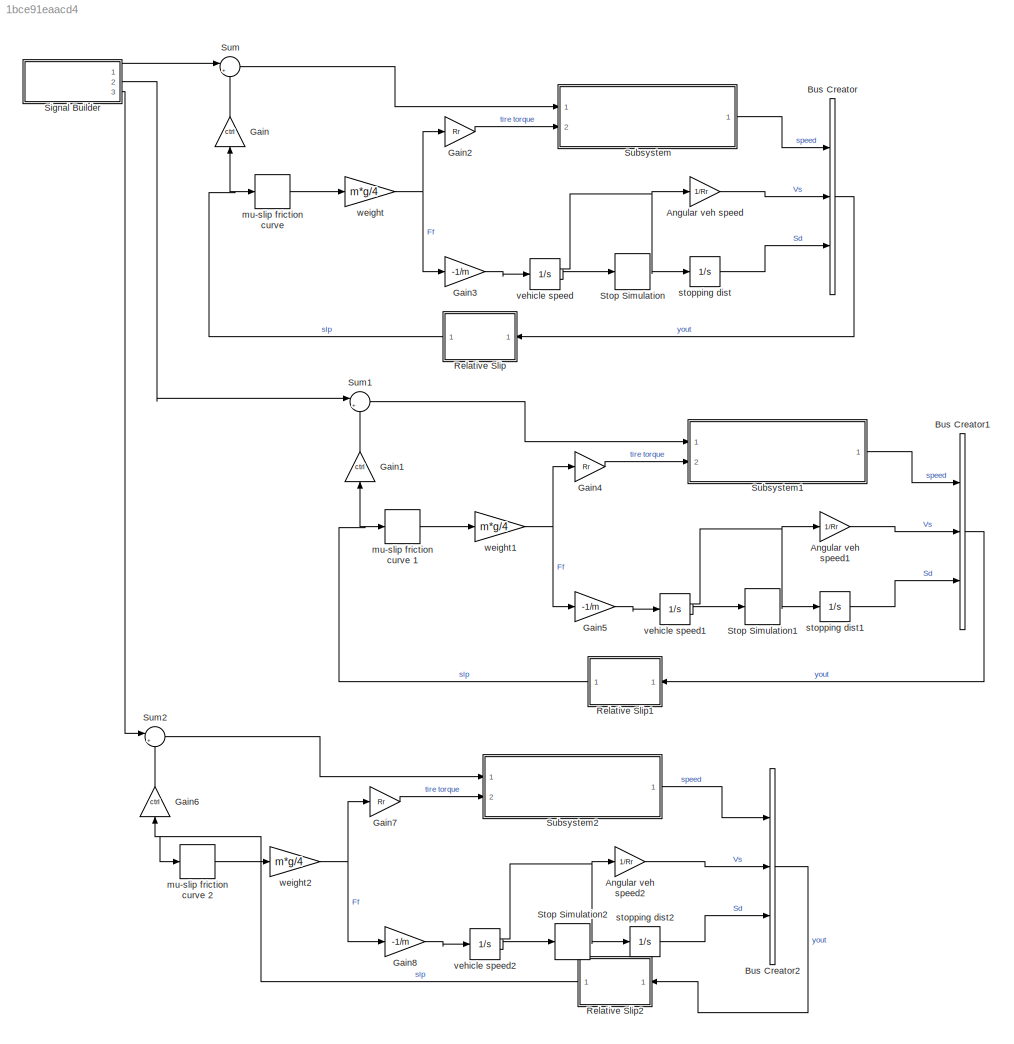
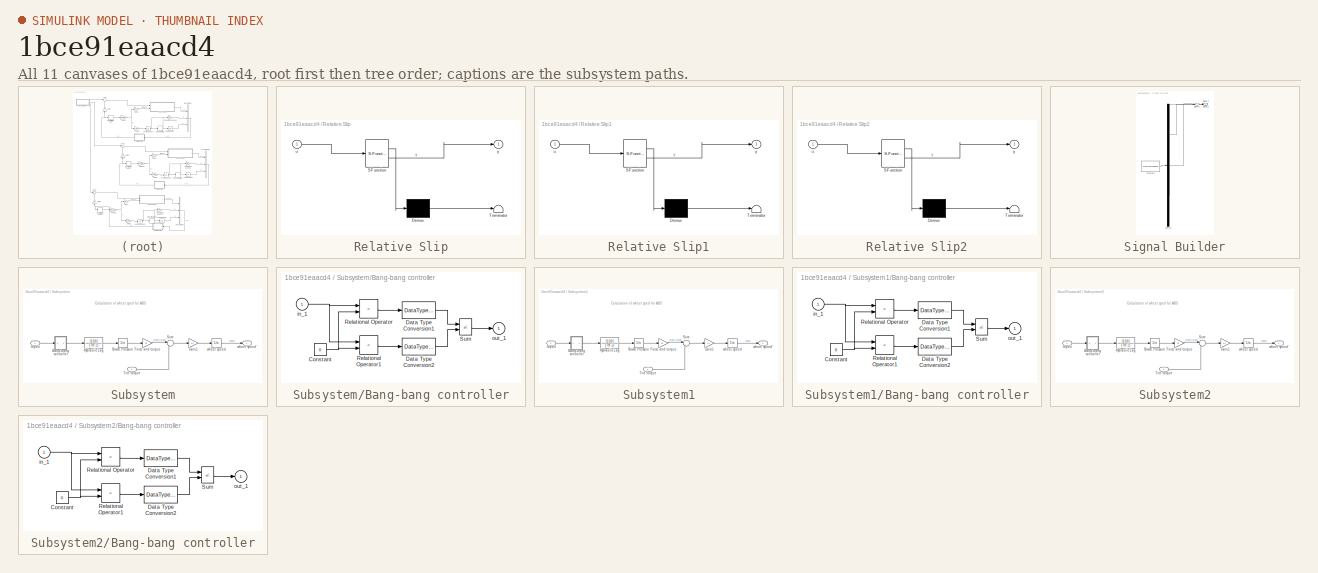
[diagram: thumbnail index - all 11 canvases of the model, root first then tree order]
MODEL slx_1bce91eaacd4
KIND model
CONFIG AbsTol = auto
CONFIG EnableMultiTasking = off
CONFIG FixedStep = auto
CONFIG MaxStep = auto
CONFIG MinStep = auto
CONFIG RelTol = 1e-3
CONFIG SampleTimeConstraint = Unconstrained
CONFIG SolverName = VariableStepAuto
CONFIG StartTime = 0.0
CONFIG StopTime = 10.0
BLOCK [Gain] Angular veh speed
  Gain = 1/Rr
BLOCK [Gain] Angular veh speed1
  Gain = 1/Rr
BLOCK [Gain] Angular veh speed2
  Gain = 1/Rr
BLOCK [BusCreator] Bus Creator
  DisplayOption = bar
  InheritFromInputs = on
  Inputs = 3
  Ports = [3, 1]
BLOCK [BusCreator] Bus Creator1
  DisplayOption = bar
  InheritFromInputs = on
  Inputs = 3
  Ports = [3, 1]
BLOCK [BusCreator] Bus Creator2
  DisplayOption = bar
  InheritFromInputs = on
  Inputs = 3
  Ports = [3, 1]
BLOCK [Gain] Gain
  Gain = ctrl
  NameLocation = left
BLOCK [Gain] Gain1
  Gain = ctrl
  NameLocation = left
BLOCK [Gain] Gain2
  Gain = Rr
BLOCK [Gain] Gain3
  Gain = -1/m
BLOCK [Gain] Gain4
  Gain = Rr
BLOCK [Gain] Gain5
  Gain = -1/m
BLOCK [Gain] Gain6
  Gain = ctrl
  NameLocation = left
BLOCK [Gain] Gain7
  Gain = Rr
BLOCK [Gain] Gain8
  Gain = -1/m
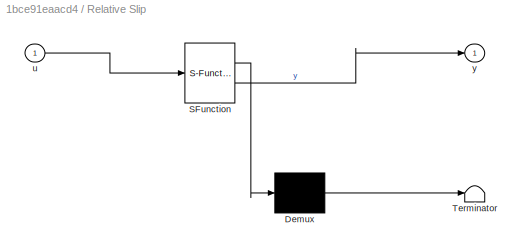
BLOCK [SubSystem] Relative Slip
  ErrorFcn = Stateflow.Translate.translate
  PermitHierarchicalResolution = ExplicitOnly
  Ports = [1, 1]
  RequestExecContextInheritance = off
  SFBlockType = MATLAB Function
  TreatAsAtomicUnit = on
BLOCK [Demux] Relative Slip/ Demux 
  Outputs = 1
  Ports = [1, 1]
BLOCK [S-Function] Relative Slip/ SFunction 
  EnableBusSupport = on
  FunctionName = sf_sfun
  PortCounts = [1 2]
  Ports = [1, 2]
  SFcnIsStateOwnerBlock = off
  SFunctionDeploymentMode = off
  Tag = Stateflow S-Function 2
BLOCK [Terminator] Relative Slip/ Terminator 
BLOCK [Inport] Relative Slip/u
BLOCK [Outport] Relative Slip/y
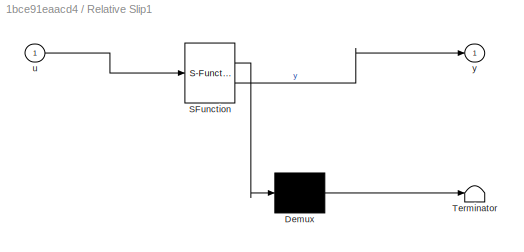
BLOCK [SubSystem] Relative Slip1
  ErrorFcn = Stateflow.Translate.translate
  PermitHierarchicalResolution = ExplicitOnly
  Ports = [1, 1]
  RequestExecContextInheritance = off
  SFBlockType = MATLAB Function
  TreatAsAtomicUnit = on
BLOCK [Demux] Relative Slip1/ Demux 
  Outputs = 1
  Ports = [1, 1]
BLOCK [S-Function] Relative Slip1/ SFunction 
  EnableBusSupport = on
  FunctionName = sf_sfun
  PortCounts = [1 2]
  Ports = [1, 2]
  SFcnIsStateOwnerBlock = off
  SFunctionDeploymentMode = off
  Tag = Stateflow S-Function 1
BLOCK [Terminator] Relative Slip1/ Terminator 
BLOCK [Inport] Relative Slip1/u
BLOCK [Outport] Relative Slip1/y
BLOCK [SubSystem] Relative Slip2
  ErrorFcn = Stateflow.Translate.translate
  PermitHierarchicalResolution = ExplicitOnly
  Ports = [1, 1]
  RequestExecContextInheritance = off
  SFBlockType = MATLAB Function
  TreatAsAtomicUnit = on
BLOCK [Demux] Relative Slip2/ Demux 
  Outputs = 1
  Ports = [1, 1]
BLOCK [S-Function] Relative Slip2/ SFunction 
  EnableBusSupport = on
  FunctionName = sf_sfun
  PortCounts = [1 2]
  Ports = [1, 2]
  SFcnIsStateOwnerBlock = off
  SFunctionDeploymentMode = off
  Tag = Stateflow S-Function 3
BLOCK [Terminator] Relative Slip2/ Terminator 
BLOCK [Inport] Relative Slip2/u
BLOCK [Outport] Relative Slip2/y
BLOCK [SubSystem] Signal Builder
  ClipboardFcn = sigbuilder_block('clipboard');
  CloseFcn = sigbuilder_block('close');
  ContinueFcn = sigbuilder_block('continue');
  CopyFcn = sigbuilder_block('copy');
  DeleteFcn = sigbuilder_block('delete');
  LoadFcn = sigbuilder_block('load');
  MaskHideContents = on
  ModelCloseFcn = sigbuilder_block('modelClose');
  NameChangeFcn = sigbuilder_block('namechange');
  OpenFcn = sigbuilder_block('open',[437.6 153 550.4 359.25 ]);
  PauseFcn = sigbuilder_block('pause');
  Ports = [0, 3]
  PreSaveFcn = sigbuilder_block('preSave');
  RequestExecContextInheritance = off
  StartFcn = sigbuilder_block('start');
  StopFcn = sigbuilder_block('stop');
  Tag = STV Subsys
BLOCK [Demux] Signal Builder/Demux
  DisplayOption = none
  Outputs = 3
  Ports = [1, 3]
  Tag = STV Demux
BLOCK [FromWorkspace] Signal Builder/FromWs
  Tag = STV FromWs
  VariableName = tuvar
BLOCK [Outport] Signal Builder/Signal 1
  Tag = STV Outport
BLOCK [Outport] Signal Builder/Signal 2
  Port = 2
  Tag = STV Outport
BLOCK [Outport] Signal Builder/Signal 3
  Port = 3
  Tag = STV Outport
BLOCK [Stop] Stop Simulation
BLOCK [Stop] Stop Simulation1
BLOCK [Stop] Stop Simulation2
BLOCK [SubSystem] Subsystem
  Ports = [2, 1]
  RequestExecContextInheritance = off
BLOCK [SubSystem] Subsystem/Bang-bang controller
  Ports = [1, 1]
  RequestExecContextInheritance = off
  ShowPortLabels = none
BLOCK [Constant] Subsystem/Bang-bang controller/Constant
  Value = 0
BLOCK [DataTypeConversion] Subsystem/Bang-bang controller/Data Type Conversion1
  OutDataTypeStr = double
BLOCK [DataTypeConversion] Subsystem/Bang-bang controller/Data Type Conversion2
  OutDataTypeStr = double
BLOCK [RelationalOperator] Subsystem/Bang-bang controller/Relational Operator
  Operator = >
  OutDataTypeStr = boolean
  Ports = [2, 1]
BLOCK [RelationalOperator] Subsystem/Bang-bang controller/Relational Operator1
  Operator = <
  OutDataTypeStr = boolean
  Ports = [2, 1]
BLOCK [Sum] Subsystem/Bang-bang controller/Sum
  IconShape = rectangular
  InputSameDT = on
  Inputs = +-
  OutDataTypeStr = Inherit: Same as first input
  Ports = [2, 1]
  SaturateOnIntegerOverflow = on
BLOCK [Inport] Subsystem/Bang-bang controller/in_1
BLOCK [Outport] Subsystem/Bang-bang controller/out_1
  InitialOutput = 0
  VectorParamsAs1DForOutWhenUnconnected = off
BLOCK [Integrator] Subsystem/Brake Pressure
  LimitOutput = on
  LowerSaturationLimit = 0
  Ports = [1, 1]
  UpperSaturationLimit = PBmax
BLOCK [Gain] Subsystem/Force and torque
  Gain = Kf
BLOCK [Gain] Subsystem/Gain1
  Gain = 1/I
BLOCK [TransferFcn] Subsystem/Hydraulic Lag
  Denominator = [TB 1]
  Numerator = [100]
BLOCK [Inport] Subsystem/Inport
BLOCK [Sum] Subsystem/Sum
  Inputs = |-+
  Ports = [2, 1]
BLOCK [Inport] Subsystem/Tire torque
  Port = 2
BLOCK [Integrator] Subsystem/wheel speed
  InitialCondition = v0/Rr
  LimitOutput = on
  LowerSaturationLimit = 0
  Ports = [1, 1]
  UpperSaturationLimit = 1000
BLOCK [Outport] Subsystem/wheel speed'
BLOCK [SubSystem] Subsystem1
  Ports = [2, 1]
  RequestExecContextInheritance = off
BLOCK [SubSystem] Subsystem1/Bang-bang controller
  Ports = [1, 1]
  RequestExecContextInheritance = off
  ShowPortLabels = none
BLOCK [Constant] Subsystem1/Bang-bang controller/Constant
  Value = 0
BLOCK [DataTypeConversion] Subsystem1/Bang-bang controller/Data Type Conversion1
  OutDataTypeStr = double
BLOCK [DataTypeConversion] Subsystem1/Bang-bang controller/Data Type Conversion2
  OutDataTypeStr = double
BLOCK [RelationalOperator] Subsystem1/Bang-bang controller/Relational Operator
  Operator = >
  OutDataTypeStr = boolean
  Ports = [2, 1]
BLOCK [RelationalOperator] Subsystem1/Bang-bang controller/Relational Operator1
  Operator = <
  OutDataTypeStr = boolean
  Ports = [2, 1]
BLOCK [Sum] Subsystem1/Bang-bang controller/Sum
  IconShape = rectangular
  InputSameDT = on
  Inputs = +-
  OutDataTypeStr = Inherit: Same as first input
  Ports = [2, 1]
  SaturateOnIntegerOverflow = on
BLOCK [Inport] Subsystem1/Bang-bang controller/in_1
BLOCK [Outport] Subsystem1/Bang-bang controller/out_1
  InitialOutput = 0
  VectorParamsAs1DForOutWhenUnconnected = off
BLOCK [Integrator] Subsystem1/Brake Pressure
  LimitOutput = on
  LowerSaturationLimit = 0
  Ports = [1, 1]
  UpperSaturationLimit = PBmax
BLOCK [Gain] Subsystem1/Force and torque
  Gain = Kf
BLOCK [Gain] Subsystem1/Gain1
  Gain = 1/I
BLOCK [TransferFcn] Subsystem1/Hydraulic Lag
  Denominator = [TB 1]
  Numerator = [100]
BLOCK [Inport] Subsystem1/Inport
BLOCK [Sum] Subsystem1/Sum
  Inputs = |-+
  Ports = [2, 1]
BLOCK [Inport] Subsystem1/Tire torque
  Port = 2
BLOCK [Integrator] Subsystem1/wheel speed
  InitialCondition = v0/Rr
  LimitOutput = on
  LowerSaturationLimit = 0
  Ports = [1, 1]
  UpperSaturationLimit = 1000
BLOCK [Outport] Subsystem1/wheel speed'
BLOCK [SubSystem] Subsystem2
  Ports = [2, 1]
  RequestExecContextInheritance = off
BLOCK [SubSystem] Subsystem2/Bang-bang controller
  Ports = [1, 1]
  RequestExecContextInheritance = off
  ShowPortLabels = none
BLOCK [Constant] Subsystem2/Bang-bang controller/Constant
  Value = 0
BLOCK [DataTypeConversion] Subsystem2/Bang-bang controller/Data Type Conversion1
  OutDataTypeStr = double
BLOCK [DataTypeConversion] Subsystem2/Bang-bang controller/Data Type Conversion2
  OutDataTypeStr = double
BLOCK [RelationalOperator] Subsystem2/Bang-bang controller/Relational Operator
  Operator = >
  OutDataTypeStr = boolean
  Ports = [2, 1]
BLOCK [RelationalOperator] Subsystem2/Bang-bang controller/Relational Operator1
  Operator = <
  OutDataTypeStr = boolean
  Ports = [2, 1]
BLOCK [Sum] Subsystem2/Bang-bang controller/Sum
  IconShape = rectangular
  InputSameDT = on
  Inputs = +-
  OutDataTypeStr = Inherit: Same as first input
  Ports = [2, 1]
  SaturateOnIntegerOverflow = on
BLOCK [Inport] Subsystem2/Bang-bang controller/in_1
BLOCK [Outport] Subsystem2/Bang-bang controller/out_1
  InitialOutput = 0
  VectorParamsAs1DForOutWhenUnconnected = off
BLOCK [Integrator] Subsystem2/Brake Pressure
  LimitOutput = on
  LowerSaturationLimit = 0
  Ports = [1, 1]
  UpperSaturationLimit = PBmax
BLOCK [Gain] Subsystem2/Force and torque
  Gain = Kf
BLOCK [Gain] Subsystem2/Gain1
  Gain = 1/I
BLOCK [TransferFcn] Subsystem2/Hydraulic Lag
  Denominator = [TB 1]
  Numerator = [100]
BLOCK [Inport] Subsystem2/Inport
BLOCK [Sum] Subsystem2/Sum
  Inputs = |-+
  Ports = [2, 1]
BLOCK [Inport] Subsystem2/Tire torque
  Port = 2
BLOCK [Integrator] Subsystem2/wheel speed
  InitialCondition = v0/Rr
  LimitOutput = on
  LowerSaturationLimit = 0
  Ports = [1, 1]
  UpperSaturationLimit = 1000
BLOCK [Outport] Subsystem2/wheel speed'
BLOCK [Sum] Sum
  Inputs = |+-
  Ports = [2, 1]
BLOCK [Sum] Sum1
  Inputs = |+-
  Ports = [2, 1]
BLOCK [Sum] Sum2
  Inputs = |+-
  Ports = [2, 1]
BLOCK [Lookup_n-D] mu-slip friction curve 
  BreakpointsForDimension1 = slip
  InputPortMap = u0
  InternalRulePriority = Speed
  NumberOfTableDimensions = 1
  Ports = [1, 1]
  RndMeth = Simplest
  Table = mu
BLOCK [Lookup_n-D] mu-slip friction curve 1
  BreakpointsForDimension1 = slip
  InputPortMap = u0
  InternalRulePriority = Speed
  NumberOfTableDimensions = 1
  Ports = [1, 1]
  RndMeth = Simplest
  Table = mu
BLOCK [Lookup_n-D] mu-slip friction curve 2
  BreakpointsForDimension1 = slip
  InputPortMap = u0
  InternalRulePriority = Speed
  NumberOfTableDimensions = 1
  Ports = [1, 1]
  RndMeth = Simplest
  Table = mu
BLOCK [Integrator] stopping dist
  Ports = [1, 1]
BLOCK [Integrator] stopping dist1
  Ports = [1, 1]
BLOCK [Integrator] stopping dist2
  Ports = [1, 1]
BLOCK [Integrator] vehicle speed
  InitialCondition = v0
  LimitOutput = on
  LowerSaturationLimit = 0
  Ports = [1, 2]
  ShowSaturationPort = on
  UpperSaturationLimit = 1000
BLOCK [Integrator] vehicle speed1
  InitialCondition = v0
  LimitOutput = on
  LowerSaturationLimit = 0
  Ports = [1, 2]
  ShowSaturationPort = on
  UpperSaturationLimit = 1000
BLOCK [Integrator] vehicle speed2
  InitialCondition = v0
  LimitOutput = on
  LowerSaturationLimit = 0
  Ports = [1, 2]
  ShowSaturationPort = on
  UpperSaturationLimit = 1000
BLOCK [Gain] weight
  Gain = m*g/4
BLOCK [Gain] weight1
  Gain = m*g/4
BLOCK [Gain] weight2
  Gain = m*g/4
ANNOTATION Subsystem: Calculation of wheel sped for ABS
ANNOTATION Subsystem1: Calculation of wheel sped for ABS
ANNOTATION Subsystem2: Calculation of wheel sped for ABS
LINE Angular veh speed1:1 -> Bus Creator1:2
LINE Angular veh speed2:1 -> Bus Creator2:2
LINE Angular veh speed:1 -> Bus Creator:2
LINE Bus Creator1:1 -> Relative Slip1:1
LINE Bus Creator2:1 -> Relative Slip2:1
LINE Bus Creator:1 -> Relative Slip:1
LINE Gain1:1 -> Sum1:2
LINE Gain2:1 -> Subsystem:2
LINE Gain3:1 -> vehicle speed:1
LINE Gain4:1 -> Subsystem1:2
LINE Gain5:1 -> vehicle speed1:1
LINE Gain6:1 -> Sum2:2
LINE Gain7:1 -> Subsystem2:2
LINE Gain8:1 -> vehicle speed2:1
LINE Gain:1 -> Sum:2
NET Relative Slip1:1 -> Gain1:1, mu-slip friction curve 1:1
NET Relative Slip2:1 -> Gain6:1, mu-slip friction curve 2:1
NET Relative Slip:1 -> Gain:1, mu-slip friction curve :1
LINE Signal Builder:1 -> Sum:1
LINE Signal Builder:2 -> Sum1:1
LINE Signal Builder:3 -> Sum2:1
NET Subsystem/Bang-bang controller/Constant:1 -> Subsystem/Bang-bang controller/Relational Operator1:2, Subsystem/Bang-bang controller/Relational Operator:2
LINE Subsystem/Bang-bang controller/Data Type Conversion1:1 -> Subsystem/Bang-bang controller/Sum:1
LINE Subsystem/Bang-bang controller/Data Type Conversion2:1 -> Subsystem/Bang-bang controller/Sum:2
LINE Subsystem/Bang-bang controller/Relational Operator1:1 -> Subsystem/Bang-bang controller/Data Type Conversion2:1
LINE Subsystem/Bang-bang controller/Relational Operator:1 -> Subsystem/Bang-bang controller/Data Type Conversion1:1
LINE Subsystem/Bang-bang controller/Sum:1 -> Subsystem/Bang-bang controller/out_1:1
NET Subsystem/Bang-bang controller/in_1:1 -> Subsystem/Bang-bang controller/Relational Operator1:1, Subsystem/Bang-bang controller/Relational Operator:1
LINE Subsystem/Bang-bang controller:1 -> Subsystem/Hydraulic Lag:1
LINE Subsystem/Brake Pressure:1 -> Subsystem/Force and torque:1
LINE Subsystem/Force and torque:1 -> Subsystem/Sum:1
LINE Subsystem/Gain1:1 -> Subsystem/wheel speed:1
LINE Subsystem/Hydraulic Lag:1 -> Subsystem/Brake Pressure:1
LINE Subsystem/Inport:1 -> Subsystem/Bang-bang controller:1
LINE Subsystem/Sum:1 -> Subsystem/Gain1:1
LINE Subsystem/Tire torque:1 -> Subsystem/Sum:2
LINE Subsystem/wheel speed:1 -> Subsystem/wheel speed':1
NET Subsystem1/Bang-bang controller/Constant:1 -> Subsystem1/Bang-bang controller/Relational Operator1:2, Subsystem1/Bang-bang controller/Relational Operator:2
LINE Subsystem1/Bang-bang controller/Data Type Conversion1:1 -> Subsystem1/Bang-bang controller/Sum:1
LINE Subsystem1/Bang-bang controller/Data Type Conversion2:1 -> Subsystem1/Bang-bang controller/Sum:2
LINE Subsystem1/Bang-bang controller/Relational Operator1:1 -> Subsystem1/Bang-bang controller/Data Type Conversion2:1
LINE Subsystem1/Bang-bang controller/Relational Operator:1 -> Subsystem1/Bang-bang controller/Data Type Conversion1:1
LINE Subsystem1/Bang-bang controller/Sum:1 -> Subsystem1/Bang-bang controller/out_1:1
NET Subsystem1/Bang-bang controller/in_1:1 -> Subsystem1/Bang-bang controller/Relational Operator1:1, Subsystem1/Bang-bang controller/Relational Operator:1
LINE Subsystem1/Bang-bang controller:1 -> Subsystem1/Hydraulic Lag:1
LINE Subsystem1/Brake Pressure:1 -> Subsystem1/Force and torque:1
LINE Subsystem1/Force and torque:1 -> Subsystem1/Sum:1
LINE Subsystem1/Gain1:1 -> Subsystem1/wheel speed:1
LINE Subsystem1/Hydraulic Lag:1 -> Subsystem1/Brake Pressure:1
LINE Subsystem1/Inport:1 -> Subsystem1/Bang-bang controller:1
LINE Subsystem1/Sum:1 -> Subsystem1/Gain1:1
LINE Subsystem1/Tire torque:1 -> Subsystem1/Sum:2
LINE Subsystem1/wheel speed:1 -> Subsystem1/wheel speed':1
LINE Subsystem1:1 -> Bus Creator1:1
NET Subsystem2/Bang-bang controller/Constant:1 -> Subsystem2/Bang-bang controller/Relational Operator1:2, Subsystem2/Bang-bang controller/Relational Operator:2
LINE Subsystem2/Bang-bang controller/Data Type Conversion1:1 -> Subsystem2/Bang-bang controller/Sum:1
LINE Subsystem2/Bang-bang controller/Data Type Conversion2:1 -> Subsystem2/Bang-bang controller/Sum:2
LINE Subsystem2/Bang-bang controller/Relational Operator1:1 -> Subsystem2/Bang-bang controller/Data Type Conversion2:1
LINE Subsystem2/Bang-bang controller/Relational Operator:1 -> Subsystem2/Bang-bang controller/Data Type Conversion1:1
LINE Subsystem2/Bang-bang controller/Sum:1 -> Subsystem2/Bang-bang controller/out_1:1
NET Subsystem2/Bang-bang controller/in_1:1 -> Subsystem2/Bang-bang controller/Relational Operator1:1, Subsystem2/Bang-bang controller/Relational Operator:1
LINE Subsystem2/Bang-bang controller:1 -> Subsystem2/Hydraulic Lag:1
LINE Subsystem2/Brake Pressure:1 -> Subsystem2/Force and torque:1
LINE Subsystem2/Force and torque:1 -> Subsystem2/Sum:1
LINE Subsystem2/Gain1:1 -> Subsystem2/wheel speed:1
LINE Subsystem2/Hydraulic Lag:1 -> Subsystem2/Brake Pressure:1
LINE Subsystem2/Inport:1 -> Subsystem2/Bang-bang controller:1
LINE Subsystem2/Sum:1 -> Subsystem2/Gain1:1
LINE Subsystem2/Tire torque:1 -> Subsystem2/Sum:2
LINE Subsystem2/wheel speed:1 -> Subsystem2/wheel speed':1
LINE Subsystem2:1 -> Bus Creator2:1
LINE Subsystem:1 -> Bus Creator:1
LINE Sum1:1 -> Subsystem1:1
LINE Sum2:1 -> Subsystem2:1
LINE Sum:1 -> Subsystem:1
LINE mu-slip friction curve 1:1 -> weight1:1
LINE mu-slip friction curve 2:1 -> weight2:1
LINE mu-slip friction curve :1 -> weight:1
LINE stopping dist1:1 -> Bus Creator1:3
LINE stopping dist2:1 -> Bus Creator2:3
LINE stopping dist:1 -> Bus Creator:3
NET vehicle speed1:1 -> Angular veh speed1:1, stopping dist1:1
LINE vehicle speed1:2 -> Stop Simulation1:1
NET vehicle speed2:1 -> Angular veh speed2:1, stopping dist2:1
LINE vehicle speed2:2 -> Stop Simulation2:1
NET vehicle speed:1 -> Angular veh speed:1, stopping dist:1
LINE vehicle speed:2 -> Stop Simulation:1
NET weight1:1 -> Gain4:1, Gain5:1
NET weight2:1 -> Gain7:1, Gain8:1
NET weight:1 -> Gain2:1, Gain3:1
note: NET lines group one-source signal fan-out (src -> all destinations, sorted); 1:1 wires keep LINE
CHART Relative Slip states=1 transitions=1
  STATE_LABEL 'eML_blk_kernel()'
  STATE_LABEL 'SCRIPT:\nfunction y = fcn(u)\n\ny = 1.0 - u(1)/(u(2) + (u(2)==0)*eps);\n'
CHART Relative Slip2 states=1 transitions=1
  STATE_LABEL 'eML_blk_kernel()'
  STATE_LABEL 'SCRIPT:\nfunction y = fcn(u)\n\ny = 1.0 - u(1)/(u(2) + (u(2)==0)*eps);\n'
CHART Relative Slip1 states=1 transitions=1
  STATE_LABEL 'eML_blk_kernel()'
  STATE_LABEL 'SCRIPT:\nfunction y = fcn(u)\n\ny = 1.0 - u(1)/(u(2) + (u(2)==0)*eps);\n'
CHART  states=0 transitions=0
CHART  states=0 transitions=0
CHART  states=0 transitions=0
